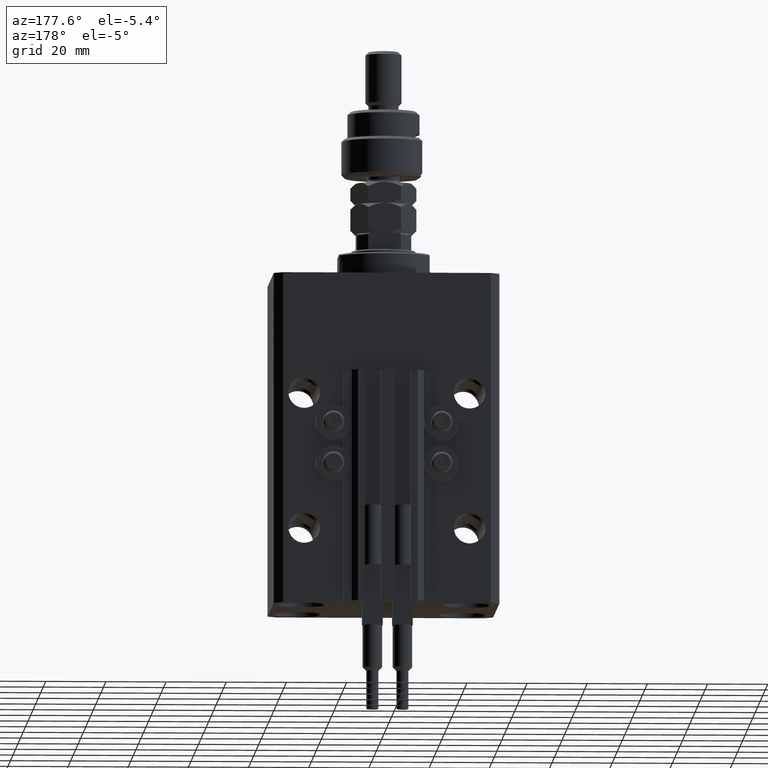
[diagram: clean part render]
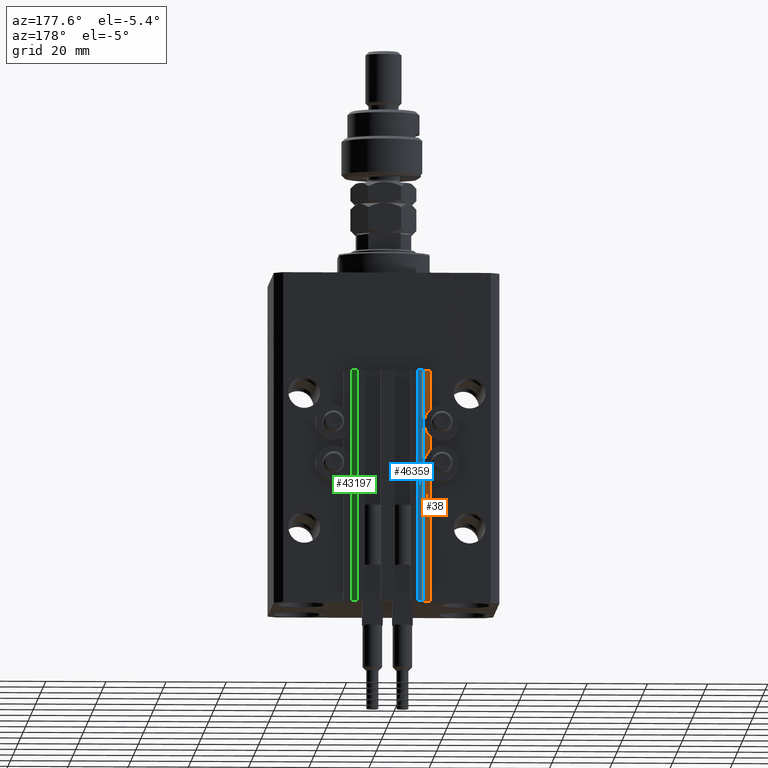
[diagram: same view with three faces highlighted in distinct colors, each labeled with its STEP entity id]
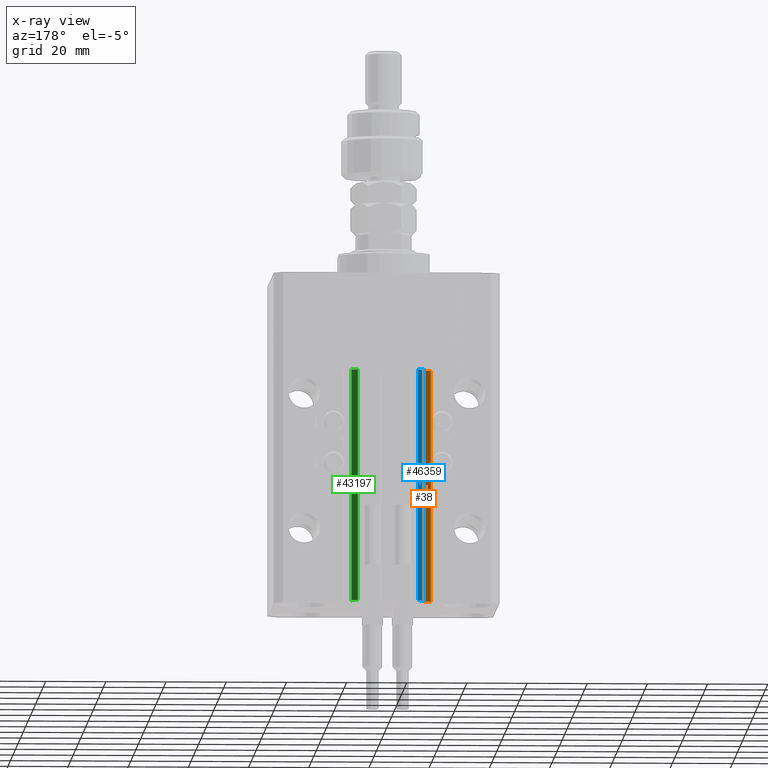
[diagram: x-ray of the same camera — body ghosted, the three highlighted faces saturated]
A machine part, auxiliary view with three faces highlighted in distinct colors.
The next image is the same camera in x-ray (body ghosted, the three faces saturated) — at least one of them is partly hidden behind the body in this view.
Their STEP definitions:

[orange] entity #38 — the highlighted planar face has unit normal (0, 1, 0).
#38 = ADVANCED_FACE ( 'NONE', ( #22489 ), #1443, .T. ) ;
#1443 = PLANE ( 'NONE',  #42322 ) ;
#2120 = CARTESIAN_POINT ( 'NONE',  ( -12.20000000000000107, 29.99999999999998934, -33.00000000000000000 ) ) ;
#5194 = EDGE_LOOP ( 'NONE', ( #42621, #34812, #38392, #22430 ) ) ;
#6866 = CARTESIAN_POINT ( 'NONE',  ( -14.50000000000000000, 29.99999999999999289, -110.0000000000000000 ) ) ;
#12464 = DIRECTION ( 'NONE',  ( 0.000000000000000000, 0.000000000000000000, 1.000000000000000000 ) ) ;
#13037 = DIRECTION ( 'NONE',  ( 1.508455196501571429E-15, 1.000000000000000000, -0.000000000000000000 ) ) ;
#15968 = LINE ( 'NONE', #31693, #42833 ) ;
#17233 = LINE ( 'NONE', #24707, #46939 ) ;
#19297 = EDGE_CURVE ( 'NONE', #38619, #34280, #15968, .T. ) ;
#19357 = EDGE_CURVE ( 'NONE', #46753, #34686, #17233, .T. ) ;
#22430 = ORIENTED_EDGE ( 'NONE', *, *, #40822, .T. ) ;
#22489 = FACE_OUTER_BOUND ( 'NONE', #5194, .T. ) ;
#23373 = EDGE_CURVE ( 'NONE', #38619, #46753, #47526, .T. ) ;
#24707 = CARTESIAN_POINT ( 'NONE',  ( -12.20000000000000107, 29.99999999999998934, -33.00000000000000000 ) ) ;
#24888 = DIRECTION ( 'NONE',  ( -1.000000000000000000, 1.508455196501571429E-15, 0.000000000000000000 ) ) ;
#28828 = DIRECTION ( 'NONE',  ( -1.000000000000000000, 1.508455196501571429E-15, 0.000000000000000000 ) ) ;
#31693 = CARTESIAN_POINT ( 'NONE',  ( -12.20000000000000107, 29.99999999999998934, -110.0000000000000000 ) ) ;
#31824 = VECTOR ( 'NONE', #46801, 1000.000000000000000 ) ;
#34108 = CARTESIAN_POINT ( 'NONE',  ( -12.20000000000000107, 29.99999999999998934, -110.0000000000000000 ) ) ;
#34280 = VERTEX_POINT ( 'NONE', #35606 ) ;
#34686 = VERTEX_POINT ( 'NONE', #47890 ) ;
#34812 = ORIENTED_EDGE ( 'NONE', *, *, #23373, .F. ) ;
#34943 = CARTESIAN_POINT ( 'NONE',  ( -12.20000000000000107, 29.99999999999998934, -110.0000000000000000 ) ) ;
#35606 = CARTESIAN_POINT ( 'NONE',  ( -14.50000000000000000, 29.99999999999999289, -110.0000000000000000 ) ) ;
#38392 = ORIENTED_EDGE ( 'NONE', *, *, #19297, .T. ) ;
#38619 = VERTEX_POINT ( 'NONE', #34943 ) ;
#40554 = CARTESIAN_POINT ( 'NONE',  ( -12.20000000000000107, 29.99999999999998934, -110.0000000000000000 ) ) ;
#40822 = EDGE_CURVE ( 'NONE', #34280, #34686, #49926, .T. ) ;
#42322 = AXIS2_PLACEMENT_3D ( 'NONE', #34108, #13037, #24888 ) ;
#42621 = ORIENTED_EDGE ( 'NONE', *, *, #19357, .F. ) ;
#42833 = VECTOR ( 'NONE', #47410, 1000.000000000000000 ) ;
#45446 = VECTOR ( 'NONE', #12464, 1000.000000000000000 ) ;
#46753 = VERTEX_POINT ( 'NONE', #2120 ) ;
#46801 = DIRECTION ( 'NONE',  ( 0.000000000000000000, 0.000000000000000000, 1.000000000000000000 ) ) ;
#46939 = VECTOR ( 'NONE', #28828, 1000.000000000000000 ) ;
#47410 = DIRECTION ( 'NONE',  ( -1.000000000000000000, 1.508455196501571429E-15, 0.000000000000000000 ) ) ;
#47526 = LINE ( 'NONE', #40554, #45446 ) ;
#47890 = CARTESIAN_POINT ( 'NONE',  ( -14.50000000000000000, 29.99999999999999289, -33.00000000000000000 ) ) ;
#49926 = LINE ( 'NONE', #6866, #31824 ) ;

[blue] entity #46359 — the highlighted planar face has unit normal (-0.7071, 0.7071, 0).
#55 = EDGE_LOOP ( 'NONE', ( #23855, #20517, #5988, #4360 ) ) ;
#633 = DIRECTION ( 'NONE',  ( -0.7071067811865460184, -0.7071067811865489050, 0.000000000000000000 ) ) ;
#942 = VECTOR ( 'NONE', #17923, 1000.000000000000000 ) ;
#1823 = EDGE_CURVE ( 'NONE', #37151, #41028, #21000, .T. ) ;
#2007 = LINE ( 'NONE', #29567, #7716 ) ;
#2418 = EDGE_CURVE ( 'NONE', #29952, #11645, #2007, .T. ) ;
#4360 = ORIENTED_EDGE ( 'NONE', *, *, #27756, .T. ) ;
#5988 = ORIENTED_EDGE ( 'NONE', *, *, #2418, .T. ) ;
#6805 = CARTESIAN_POINT ( 'NONE',  ( -12.00000000000000000, 33.49999999999998579, -33.00000000000000000 ) ) ;
#7716 = VECTOR ( 'NONE', #45301, 1000.000000000000227 ) ;
#11645 = VERTEX_POINT ( 'NONE', #46579 ) ;
#13261 = FACE_OUTER_BOUND ( 'NONE', #55, .T. ) ;
#16622 = CARTESIAN_POINT ( 'NONE',  ( -10.00000000000000000, 35.50000000000000000, -33.00000000000000000 ) ) ;
#17923 = DIRECTION ( 'NONE',  ( 0.000000000000000000, 0.000000000000000000, 1.000000000000000000 ) ) ;
#20475 = DIRECTION ( 'NONE',  ( -0.7071067811865490160, 0.7071067811865461294, 0.000000000000000000 ) ) ;
#20517 = ORIENTED_EDGE ( 'NONE', *, *, #22381, .F. ) ;
#21000 = LINE ( 'NONE', #16622, #48979 ) ;
#21422 = LINE ( 'NONE', #24776, #24145 ) ;
#21502 = CARTESIAN_POINT ( 'NONE',  ( -10.00000000000000000, 35.50000000000000000, -110.0000000000000000 ) ) ;
#22381 = EDGE_CURVE ( 'NONE', #29952, #37151, #37007, .T. ) ;
#23755 = AXIS2_PLACEMENT_3D ( 'NONE', #21502, #20475, #633 ) ;
#23855 = ORIENTED_EDGE ( 'NONE', *, *, #1823, .F. ) ;
#24145 = VECTOR ( 'NONE', #45143, 1000.000000000000000 ) ;
#24776 = CARTESIAN_POINT ( 'NONE',  ( -12.00000000000000000, 33.49999999999998579, -110.0000000000000000 ) ) ;
#27756 = EDGE_CURVE ( 'NONE', #11645, #41028, #21422, .T. ) ;
#28975 = PLANE ( 'NONE',  #23755 ) ;
#29567 = CARTESIAN_POINT ( 'NONE',  ( -10.00000000000000000, 35.50000000000000000, -110.0000000000000000 ) ) ;
#29952 = VERTEX_POINT ( 'NONE', #48271 ) ;
#34158 = CARTESIAN_POINT ( 'NONE',  ( -10.00000000000000000, 35.50000000000000000, -110.0000000000000000 ) ) ;
#37007 = LINE ( 'NONE', #34158, #942 ) ;
#37151 = VERTEX_POINT ( 'NONE', #48524 ) ;
#41028 = VERTEX_POINT ( 'NONE', #6805 ) ;
#44462 = DIRECTION ( 'NONE',  ( -0.7071067811865460184, -0.7071067811865490160, 0.000000000000000000 ) ) ;
#45143 = DIRECTION ( 'NONE',  ( 0.000000000000000000, 0.000000000000000000, 1.000000000000000000 ) ) ;
#45301 = DIRECTION ( 'NONE',  ( -0.7071067811865460184, -0.7071067811865490160, 0.000000000000000000 ) ) ;
#46359 = ADVANCED_FACE ( 'NONE', ( #13261 ), #28975, .T. ) ;
#46579 = CARTESIAN_POINT ( 'NONE',  ( -12.00000000000000000, 33.49999999999998579, -110.0000000000000000 ) ) ;
#48271 = CARTESIAN_POINT ( 'NONE',  ( -10.00000000000000000, 35.50000000000000000, -110.0000000000000000 ) ) ;
#48524 = CARTESIAN_POINT ( 'NONE',  ( -10.00000000000000000, 35.50000000000000000, -33.00000000000000000 ) ) ;
#48979 = VECTOR ( 'NONE', #44462, 1000.000000000000227 ) ;

[green] entity #43197 — the highlighted planar face has unit normal (0.7071, 0.7071, 0).
#812 = DIRECTION ( 'NONE',  ( -0.7071067811865474617, 0.7071067811865474617, 0.000000000000000000 ) ) ;
#2488 = ORIENTED_EDGE ( 'NONE', *, *, #49096, .T. ) ;
#3415 = ORIENTED_EDGE ( 'NONE', *, *, #8489, .F. ) ;
#3646 = CARTESIAN_POINT ( 'NONE',  ( 12.00000000000000000, 33.50000000000001421, -110.0000000000000000 ) ) ;
#3905 = LINE ( 'NONE', #3646, #23552 ) ;
#5473 = DIRECTION ( 'NONE',  ( 0.000000000000000000, 0.000000000000000000, 1.000000000000000000 ) ) ;
#5727 = LINE ( 'NONE', #40786, #23912 ) ;
#8489 = EDGE_CURVE ( 'NONE', #38289, #48283, #3905, .T. ) ;
#12334 = ORIENTED_EDGE ( 'NONE', *, *, #17585, .T. ) ;
#12975 = AXIS2_PLACEMENT_3D ( 'NONE', #17291, #40756, #33026 ) ;
#13933 = VERTEX_POINT ( 'NONE', #37904 ) ;
#15514 = CARTESIAN_POINT ( 'NONE',  ( 12.00000000000000000, 33.50000000000001421, -33.00000000000000000 ) ) ;
#15787 = LINE ( 'NONE', #16281, #25407 ) ;
#16281 = CARTESIAN_POINT ( 'NONE',  ( 12.00000000000000000, 33.50000000000001421, -110.0000000000000000 ) ) ;
#17291 = CARTESIAN_POINT ( 'NONE',  ( 12.00000000000000000, 33.50000000000001421, -110.0000000000000000 ) ) ;
#17545 = PLANE ( 'NONE',  #12975 ) ;
#17585 = EDGE_CURVE ( 'NONE', #42798, #13933, #5727, .T. ) ;
#20741 = VECTOR ( 'NONE', #31235, 1000.000000000000114 ) ;
#22997 = LINE ( 'NONE', #15514, #20741 ) ;
#23552 = VECTOR ( 'NONE', #27079, 1000.000000000000000 ) ;
#23575 = EDGE_CURVE ( 'NONE', #48283, #13933, #22997, .T. ) ;
#23912 = VECTOR ( 'NONE', #5473, 1000.000000000000000 ) ;
#25407 = VECTOR ( 'NONE', #812, 1000.000000000000114 ) ;
#27079 = DIRECTION ( 'NONE',  ( 0.000000000000000000, 0.000000000000000000, 1.000000000000000000 ) ) ;
#28886 = FACE_OUTER_BOUND ( 'NONE', #46221, .T. ) ;
#30415 = CARTESIAN_POINT ( 'NONE',  ( 12.00000000000000000, 33.50000000000001421, -110.0000000000000000 ) ) ;
#31235 = DIRECTION ( 'NONE',  ( -0.7071067811865474617, 0.7071067811865474617, 0.000000000000000000 ) ) ;
#33026 = DIRECTION ( 'NONE',  ( -0.7071067811865474617, 0.7071067811865474617, 0.000000000000000000 ) ) ;
#37904 = CARTESIAN_POINT ( 'NONE',  ( 9.999999999999998224, 35.50000000000001421, -33.00000000000000000 ) ) ;
#38289 = VERTEX_POINT ( 'NONE', #30415 ) ;
#40756 = DIRECTION ( 'NONE',  ( 0.7071067811865475727, 0.7071067811865475727, -0.000000000000000000 ) ) ;
#40786 = CARTESIAN_POINT ( 'NONE',  ( 9.999999999999998224, 35.50000000000001421, -110.0000000000000000 ) ) ;
#40916 = ORIENTED_EDGE ( 'NONE', *, *, #23575, .F. ) ;
#42798 = VERTEX_POINT ( 'NONE', #45003 ) ;
#43197 = ADVANCED_FACE ( 'NONE', ( #28886 ), #17545, .T. ) ;
#45003 = CARTESIAN_POINT ( 'NONE',  ( 9.999999999999998224, 35.50000000000001421, -110.0000000000000000 ) ) ;
#46221 = EDGE_LOOP ( 'NONE', ( #40916, #3415, #2488, #12334 ) ) ;
#48283 = VERTEX_POINT ( 'NONE', #49456 ) ;
#49096 = EDGE_CURVE ( 'NONE', #38289, #42798, #15787, .T. ) ;
#49456 = CARTESIAN_POINT ( 'NONE',  ( 12.00000000000000000, 33.50000000000001421, -33.00000000000000000 ) ) ;